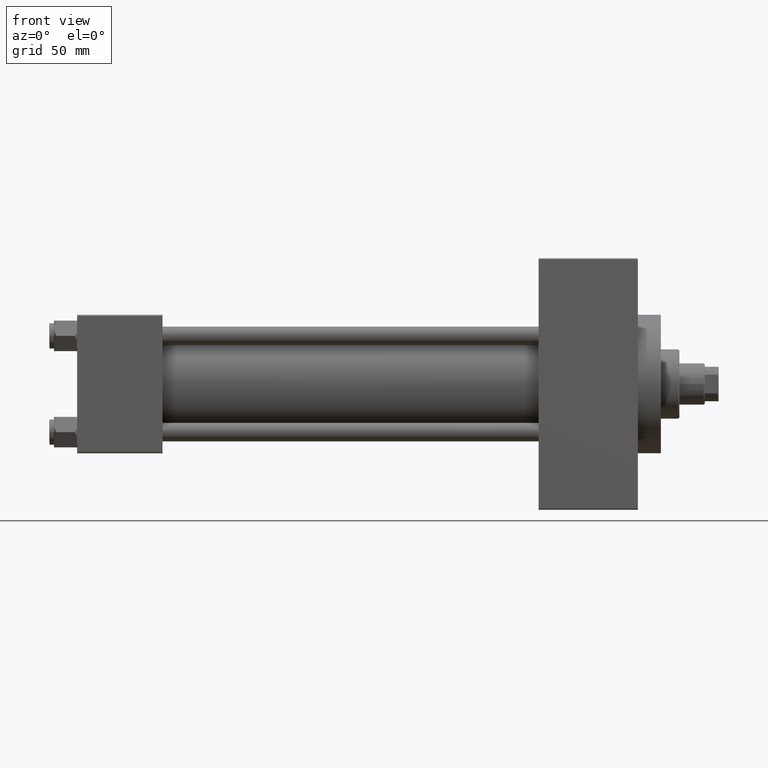
[diagram: clean part render]
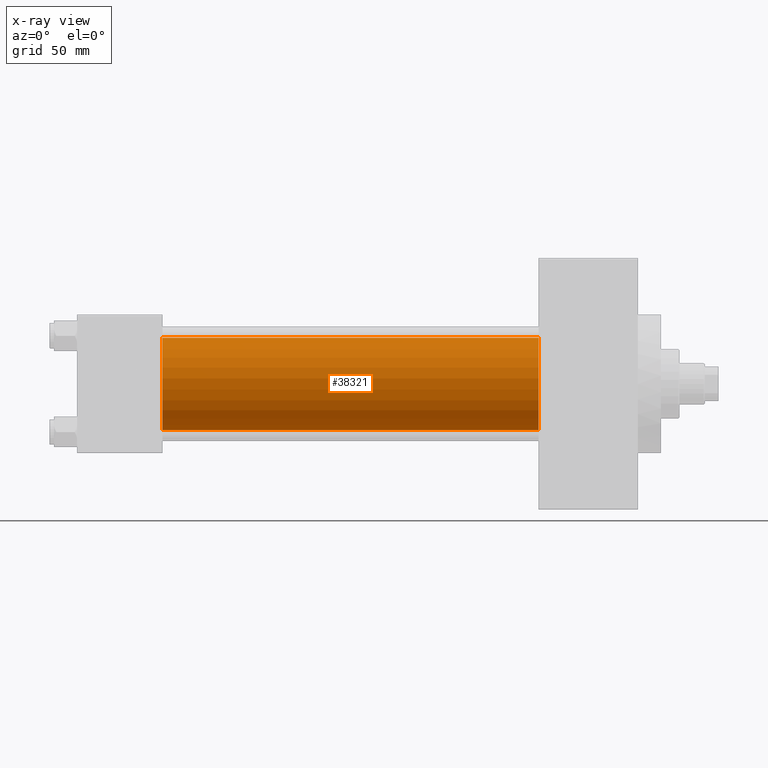
[diagram: x-ray — body ghosted, one internal face saturated and labeled with its STEP entity id]
A machine part, front view, then the same camera in x-ray: the body is ghosted and one INTERNAL B-rep face — a face not visible from any outside direction — is saturated and labeled: STEP entity #38321.
In plain terms, the highlighted cylindrical surface (partial cylindrical patch) has radius 20 mm, axis along (-1, -0, -0).
Its self-contained STEP definition (entity closure, byte-faithful):
#1366 = DIRECTION ( 'NONE',  ( 0.000000000000000000, 0.000000000000000000, -1.000000000000000000 ) ) ;
#2254 = CARTESIAN_POINT ( 'NONE',  ( 200.0000000000000000, -1.527916156705042519E-16, -20.00000000000000000 ) ) ;
#2919 = VERTEX_POINT ( 'NONE', #26283 ) ;
#2972 = DIRECTION ( 'NONE',  ( -1.000000000000000000, -0.000000000000000000, -0.000000000000000000 ) ) ;
#3206 = CARTESIAN_POINT ( 'NONE',  ( 200.0000000000000000, -2.602085213965210642E-15, 20.00000000000000000 ) ) ;
#3957 = VERTEX_POINT ( 'NONE', #10698 ) ;
#5569 = CIRCLE ( 'NONE', #14344, 20.00000000000000000 ) ;
#8033 = VERTEX_POINT ( 'NONE', #43456 ) ;
#10698 = CARTESIAN_POINT ( 'NONE',  ( 200.0000000000000000, -2.602085213965210642E-15, 20.00000000000000000 ) ) ;
#11096 = EDGE_LOOP ( 'NONE', ( #32269, #39406, #36721, #28626 ) ) ;
#11939 = VECTOR ( 'NONE', #37261, 1000.000000000000000 ) ;
#14344 = AXIS2_PLACEMENT_3D ( 'NONE', #20150, #46198, #1366 ) ;
#18342 = CIRCLE ( 'NONE', #37547, 20.00000000000000000 ) ;
#20150 = CARTESIAN_POINT ( 'NONE',  ( 200.0000000000000000, -2.602085213965210642E-15, 0.000000000000000000 ) ) ;
#24912 = AXIS2_PLACEMENT_3D ( 'NONE', #48778, #2972, #48047 ) ;
#26059 = CARTESIAN_POINT ( 'NONE',  ( 37.00000000000000000, -2.602085213965210642E-15, 0.000000000000000000 ) ) ;
#26061 = EDGE_CURVE ( 'NONE', #3957, #2919, #5569, .T. ) ;
#26283 = CARTESIAN_POINT ( 'NONE',  ( 200.0000000000000000, -1.527916156705042519E-16, -20.00000000000000000 ) ) ;
#28626 = ORIENTED_EDGE ( 'NONE', *, *, #34421, .F. ) ;
#28788 = FACE_OUTER_BOUND ( 'NONE', #11096, .T. ) ;
#29257 = LINE ( 'NONE', #3206, #11939 ) ;
#32269 = ORIENTED_EDGE ( 'NONE', *, *, #26061, .T. ) ;
#32812 = DIRECTION ( 'NONE',  ( -1.000000000000000000, -0.000000000000000000, -0.000000000000000000 ) ) ;
#33062 = DIRECTION ( 'NONE',  ( 1.000000000000000000, 0.000000000000000000, 0.000000000000000000 ) ) ;
#34089 = EDGE_CURVE ( 'NONE', #42503, #8033, #18342, .T. ) ;
#34421 = EDGE_CURVE ( 'NONE', #3957, #42503, #29257, .T. ) ;
#35396 = VECTOR ( 'NONE', #32812, 1000.000000000000000 ) ;
#36571 = LINE ( 'NONE', #2254, #35396 ) ;
#36721 = ORIENTED_EDGE ( 'NONE', *, *, #34089, .F. ) ;
#36821 = DIRECTION ( 'NONE',  ( 0.000000000000000000, 0.000000000000000000, -1.000000000000000000 ) ) ;
#37261 = DIRECTION ( 'NONE',  ( -1.000000000000000000, -0.000000000000000000, -0.000000000000000000 ) ) ;
#37284 = CYLINDRICAL_SURFACE ( 'NONE', #24912, 20.00000000000000000 ) ;
#37547 = AXIS2_PLACEMENT_3D ( 'NONE', #26059, #33062, #36821 ) ;
#38321 = ADVANCED_FACE ( 'NONE', ( #28788 ), #37284, .F. ) ;
#39406 = ORIENTED_EDGE ( 'NONE', *, *, #41530, .T. ) ;
#39458 = CARTESIAN_POINT ( 'NONE',  ( 37.00000000000000000, -2.602085213965210642E-15, 20.00000000000000000 ) ) ;
#41530 = EDGE_CURVE ( 'NONE', #2919, #8033, #36571, .T. ) ;
#42503 = VERTEX_POINT ( 'NONE', #39458 ) ;
#43456 = CARTESIAN_POINT ( 'NONE',  ( 37.00000000000000000, -1.527916156705042519E-16, -20.00000000000000000 ) ) ;
#46198 = DIRECTION ( 'NONE',  ( 1.000000000000000000, 0.000000000000000000, 0.000000000000000000 ) ) ;
#48047 = DIRECTION ( 'NONE',  ( 0.000000000000000000, 0.000000000000000000, 1.000000000000000000 ) ) ;
#48778 = CARTESIAN_POINT ( 'NONE',  ( 200.0000000000000000, -2.602085213965210642E-15, 0.000000000000000000 ) ) ;